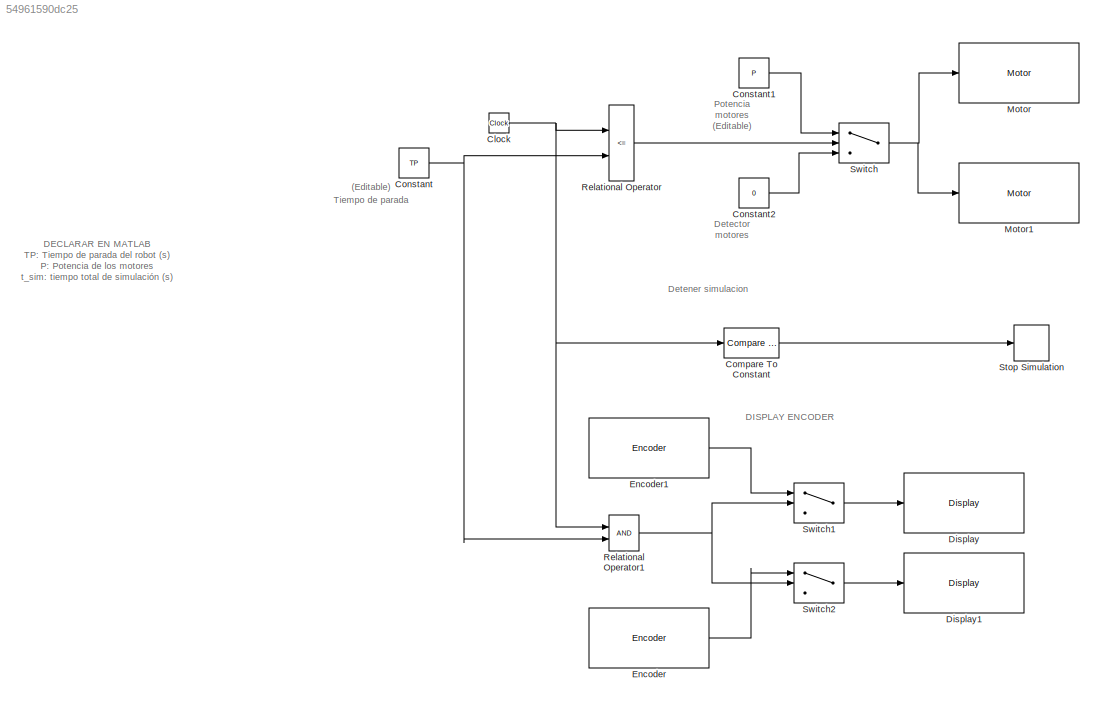
MODEL slx_54961590dc25
KIND model
CONFIG AbsTol = auto
CONFIG EnableMultiTasking = on
CONFIG FixedStep = auto
CONFIG MaxStep = auto
CONFIG MinStep = auto
CONFIG RelTol = 1e-3
CONFIG SampleTimeConstraint = Unconstrained
CONFIG SolverName = FixedStepAuto
CONFIG StartTime = 0.0
CONFIG StopTime = 10.0
BLOCK [Clock] Clock
BLOCK [Reference] Compare To Constant  REF=simulink/Logic and Bit
Operations/Compare
To Constant
  Ports = [1, 1]
  SourceBlock = simulink/Logic and Bit\nOperations/Compare\nTo Constant
  SourceProductBaseCode = SL
  SourceType = Compare To Constant
BLOCK [Constant] Constant
  Value = TP
BLOCK [Constant] Constant1
  Value = P
BLOCK [Constant] Constant2
  Value = 0
BLOCK [Reference] Display  REF=legoev3lib/Display
  Ports = [1]
  SourceBlock = legoev3lib/Display
  SourceProductBaseCode = LEGOEV3
  SourceType = LEGO MINDSTORMS EV3 Display
BLOCK [Reference] Display1  REF=legoev3lib/Display
  Ports = [1]
  SourceBlock = legoev3lib/Display
  SourceProductBaseCode = LEGOEV3
  SourceType = LEGO MINDSTORMS EV3 Display
BLOCK [Reference] Encoder  REF=legoev3lib/Encoder
  Ports = [0, 1]
  SourceBlock = legoev3lib/Encoder
  SourceProductBaseCode = LEGOEV3
  SourceType = LEGO MINDSTORMS EV3 Encoder
BLOCK [Reference] Encoder1  REF=legoev3lib/Encoder
  Ports = [0, 1]
  SourceBlock = legoev3lib/Encoder
  SourceProductBaseCode = LEGOEV3
  SourceType = LEGO MINDSTORMS EV3 Encoder
BLOCK [Reference] Motor  REF=legoev3lib/Motor
  Ports = [1]
  SourceBlock = legoev3lib/Motor
  SourceProductBaseCode = LEGOEV3
  SourceType = LEGO MINDSTORMS EV3 Motor
BLOCK [Reference] Motor1  REF=legoev3lib/Motor
  Ports = [1]
  SourceBlock = legoev3lib/Motor
  SourceProductBaseCode = LEGOEV3
  SourceType = LEGO MINDSTORMS EV3 Motor
BLOCK [RelationalOperator] Relational Operator
  InputSameDT = off
  Operator = <=
  OutDataTypeStr = boolean
  Ports = [2, 1]
  RndMeth = Simplest
BLOCK [RelationalOperator] Relational Operator1
  InputSameDT = off
  OutDataTypeStr = boolean
  Ports = [2, 1]
  RndMeth = Simplest
BLOCK [Stop] Stop Simulation
BLOCK [Switch] Switch
  Criteria = u2 > Threshold
  InputSameDT = off
  SaturateOnIntegerOverflow = off
BLOCK [Switch] Switch1
  Criteria = u2 > Threshold
  InputSameDT = off
  SaturateOnIntegerOverflow = off
BLOCK [Switch] Switch2
  Criteria = u2 > Threshold
  InputSameDT = off
  SaturateOnIntegerOverflow = off
ANNOTATION (root): Detector motores
ANNOTATION (root): Potencia motores (Editable)
ANNOTATION (root): DECLARAR EN MATLAB TP: Tiempo de parada del robot (s) P: Potencia de los motores t_sim: tiempo total de simulación (s)
ANNOTATION (root): Tiempo de parada (Editable)
ANNOTATION (root): DISPLAY ENCODER
ANNOTATION (root): Detener simulacion
NET Clock:1 -> Compare To Constant:1, Relational Operator1:1, Relational Operator:1
LINE Compare To Constant:1 -> Stop Simulation:1
LINE Constant1:1 -> Switch:1
LINE Constant2:1 -> Switch:3
NET Constant:1 -> Relational Operator1:2, Relational Operator:2
LINE Encoder1:1 -> Switch1:1
LINE Encoder:1 -> Switch2:1
NET Relational Operator1:1 -> Switch1:2, Switch2:2
LINE Relational Operator:1 -> Switch:2
LINE Switch1:1 -> Display:1
LINE Switch2:1 -> Display1:1
NET Switch:1 -> Motor1:1, Motor:1
note: NET lines group one-source signal fan-out (src -> all destinations, sorted); 1:1 wires keep LINE
